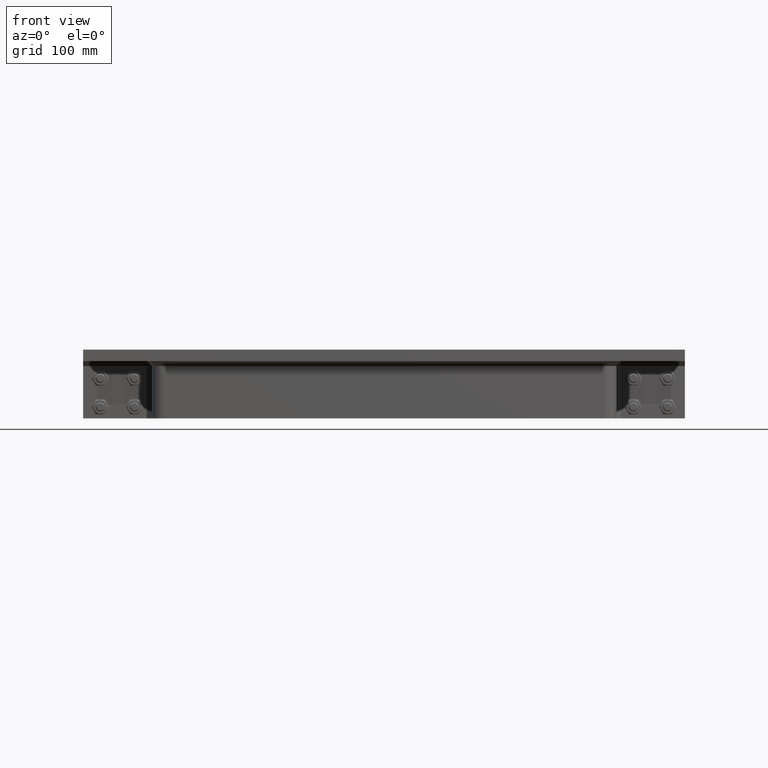
[diagram: clean part render]
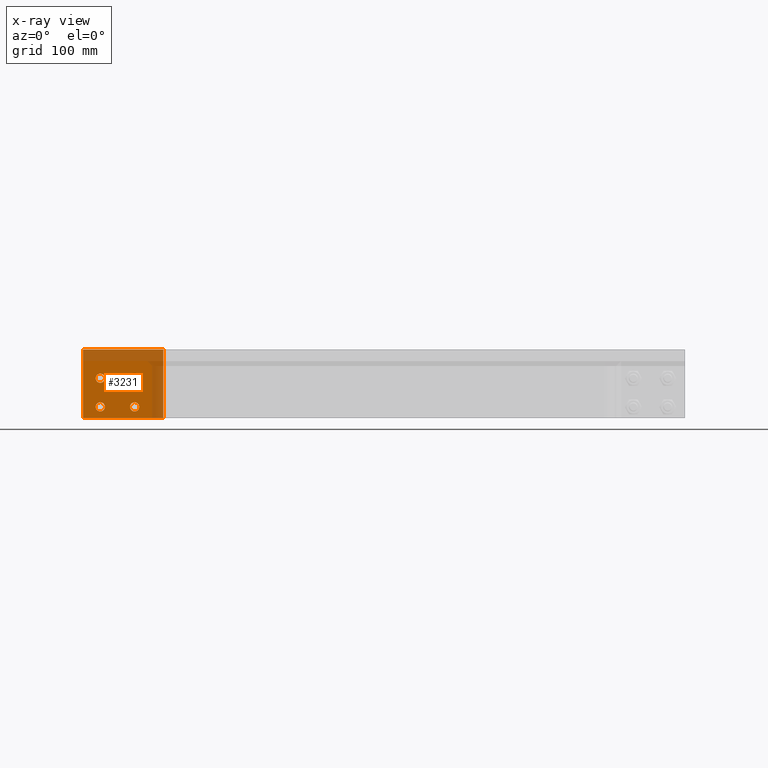
[diagram: x-ray — body ghosted, one internal face saturated and labeled with its STEP entity id]
A machine part, front view, then the same camera in x-ray: the body is ghosted and one INTERNAL B-rep face — a face not visible from any outside direction — is saturated and labeled: STEP entity #3231.
In plain terms, the highlighted planar face has unit normal (0, 1, 0).
Its self-contained STEP definition (entity closure, byte-faithful):
#339=FACE_BOUND('',#902,.T.);
#340=FACE_BOUND('',#903,.T.);
#341=FACE_BOUND('',#904,.T.);
#342=FACE_BOUND('',#905,.T.);
#458=CIRCLE('',#3717,4.);
#460=CIRCLE('',#3720,4.);
#462=CIRCLE('',#3723,4.);
#464=CIRCLE('',#3726,4.);
#638=FACE_OUTER_BOUND('',#901,.T.);
#901=EDGE_LOOP('',(#2751,#2752,#2753,#2754));
#902=EDGE_LOOP('',(#2755));
#903=EDGE_LOOP('',(#2756));
#904=EDGE_LOOP('',(#2757));
#905=EDGE_LOOP('',(#2758));
#1162=LINE('',#5408,#1407);
#1166=LINE('',#5416,#1411);
#1169=LINE('',#5422,#1414);
#1172=LINE('',#5427,#1417);
#1407=VECTOR('',#4479,10.);
#1411=VECTOR('',#4485,10.);
#1414=VECTOR('',#4490,10.);
#1417=VECTOR('',#4495,10.);
#1655=VERTEX_POINT('',#5384);
#1657=VERTEX_POINT('',#5390);
#1659=VERTEX_POINT('',#5396);
#1661=VERTEX_POINT('',#5402);
#1662=VERTEX_POINT('',#5406);
#1663=VERTEX_POINT('',#5407);
#1666=VERTEX_POINT('',#5415);
#1668=VERTEX_POINT('',#5421);
#2025=EDGE_CURVE('',#1655,#1655,#458,.T.);
#2028=EDGE_CURVE('',#1657,#1657,#460,.T.);
#2031=EDGE_CURVE('',#1659,#1659,#462,.T.);
#2034=EDGE_CURVE('',#1661,#1661,#464,.T.);
#2035=EDGE_CURVE('',#1662,#1663,#1162,.T.);
#2039=EDGE_CURVE('',#1663,#1666,#1166,.T.);
#2042=EDGE_CURVE('',#1666,#1668,#1169,.T.);
#2045=EDGE_CURVE('',#1668,#1662,#1172,.T.);
#2751=ORIENTED_EDGE('',*,*,#2045,.T.);
#2752=ORIENTED_EDGE('',*,*,#2035,.T.);
#2753=ORIENTED_EDGE('',*,*,#2039,.T.);
#2754=ORIENTED_EDGE('',*,*,#2042,.T.);
#2755=ORIENTED_EDGE('',*,*,#2025,.T.);
#2756=ORIENTED_EDGE('',*,*,#2028,.T.);
#2757=ORIENTED_EDGE('',*,*,#2031,.T.);
#2758=ORIENTED_EDGE('',*,*,#2034,.T.);
#3083=PLANE('',#3731);
#3231=ADVANCED_FACE('',(#638,#339,#340,#341,#342),#3083,.F.);
#3717=AXIS2_PLACEMENT_3D('',#5386,#4454,#4455);
#3720=AXIS2_PLACEMENT_3D('',#5392,#4461,#4462);
#3723=AXIS2_PLACEMENT_3D('',#5398,#4468,#4469);
#3726=AXIS2_PLACEMENT_3D('',#5404,#4475,#4476);
#3731=AXIS2_PLACEMENT_3D('',#5429,#4497,#4498);
#4454=DIRECTION('center_axis',(0.,0.,1.));
#4455=DIRECTION('ref_axis',(1.,0.,0.));
#4461=DIRECTION('center_axis',(0.,0.,1.));
#4462=DIRECTION('ref_axis',(1.,0.,0.));
#4468=DIRECTION('center_axis',(0.,0.,1.));
#4469=DIRECTION('ref_axis',(1.,0.,0.));
#4475=DIRECTION('center_axis',(0.,0.,1.));
#4476=DIRECTION('ref_axis',(1.,0.,0.));
#4479=DIRECTION('',(2.22044604925031E-16,-1.,0.));
#4485=DIRECTION('',(-1.,0.,0.));
#4490=DIRECTION('',(2.22044604925031E-16,1.,0.));
#4495=DIRECTION('',(1.,0.,0.));
#4497=DIRECTION('center_axis',(0.,0.,1.));
#4498=DIRECTION('ref_axis',(1.,0.,0.));
#5384=CARTESIAN_POINT('',(16.,-20.,0.));
#5386=CARTESIAN_POINT('Origin',(20.,-20.,0.));
#5390=CARTESIAN_POINT('',(-14.,5.00000000000001,0.));
#5392=CARTESIAN_POINT('Origin',(-9.99999999999997,5.00000000000001,0.));
#5396=CARTESIAN_POINT('',(16.,5.00000000000001,0.));
#5398=CARTESIAN_POINT('Origin',(20.,5.00000000000001,0.));
#5402=CARTESIAN_POINT('',(-14.,-20.,0.));
#5404=CARTESIAN_POINT('Origin',(-9.99999999999998,-20.,0.));
#5406=CARTESIAN_POINT('',(35.,30.,0.));
#5407=CARTESIAN_POINT('',(35.,-30.,0.));
#5408=CARTESIAN_POINT('',(35.,30.,0.));
#5415=CARTESIAN_POINT('',(-35.,-30.,0.));
#5416=CARTESIAN_POINT('',(35.,-30.,0.));
#5421=CARTESIAN_POINT('',(-35.,30.,0.));
#5422=CARTESIAN_POINT('',(-35.,-30.,0.));
#5427=CARTESIAN_POINT('',(-35.,30.,0.));
#5429=CARTESIAN_POINT('Origin',(0.,5.12410626750072E-15,0.));